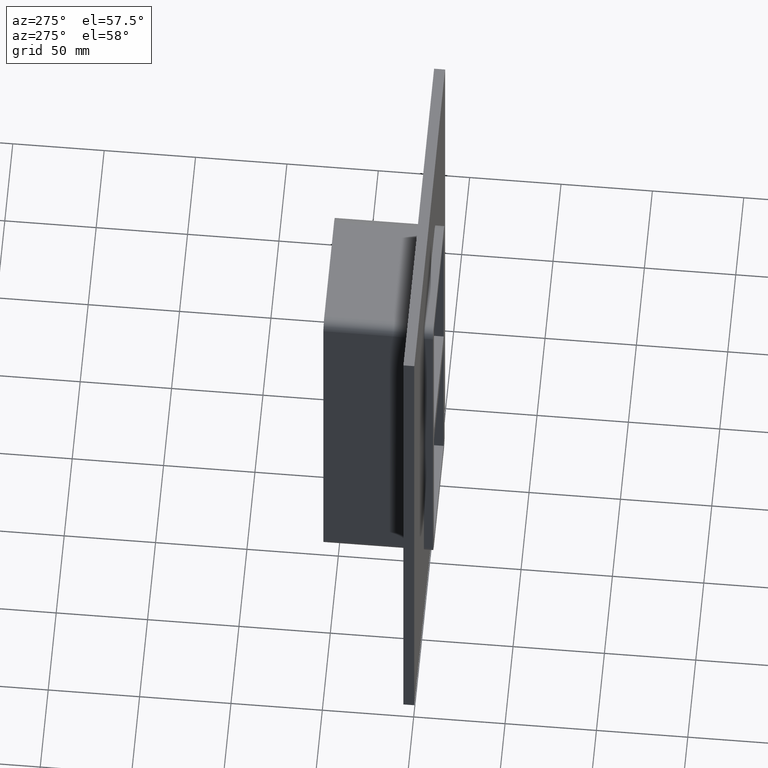
[diagram: clean part render]
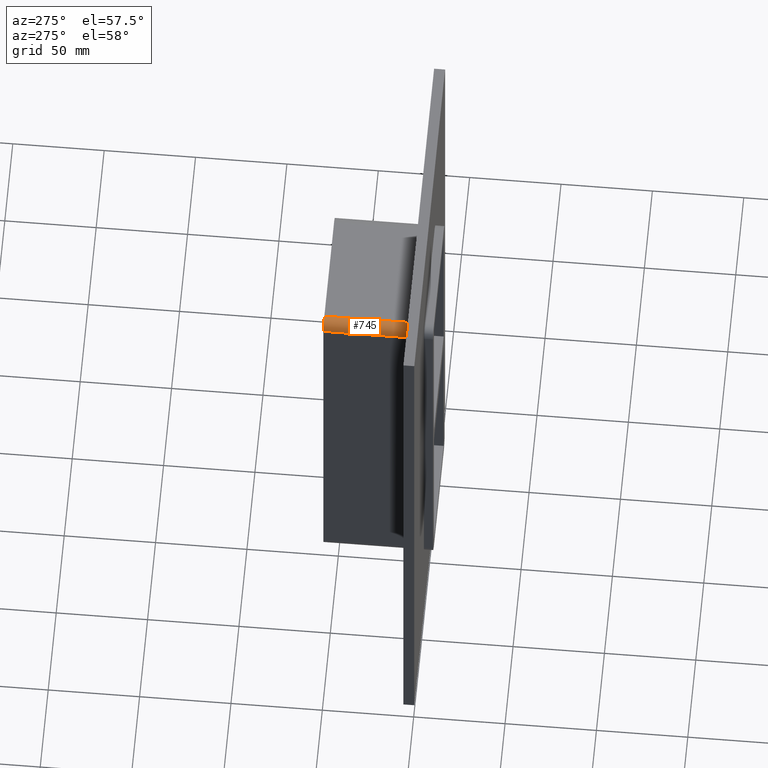
[diagram: same view with one face highlighted and labeled with its STEP entity id]
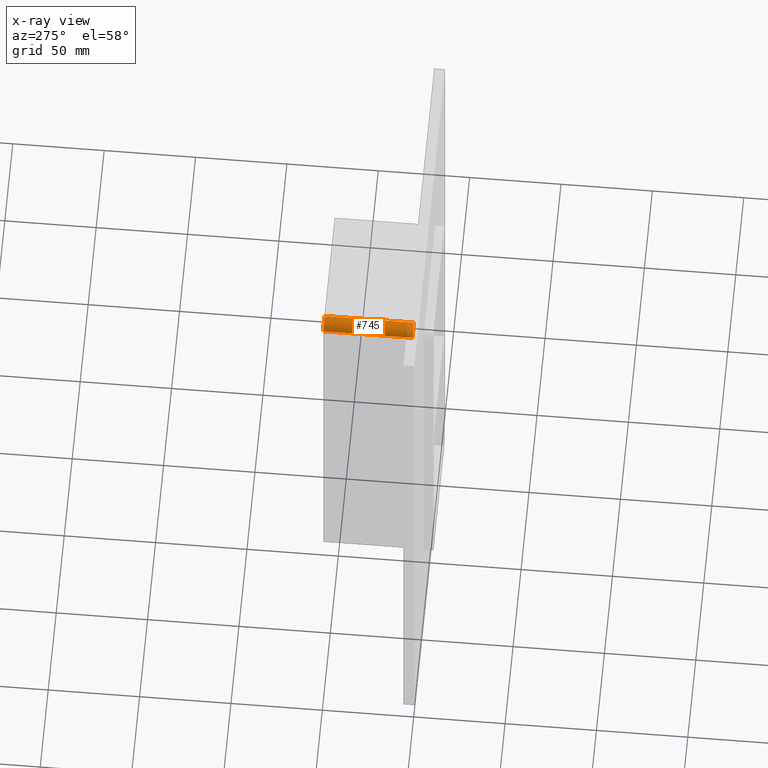
[diagram: x-ray of the same camera — body ghosted, the highlighted face saturated]
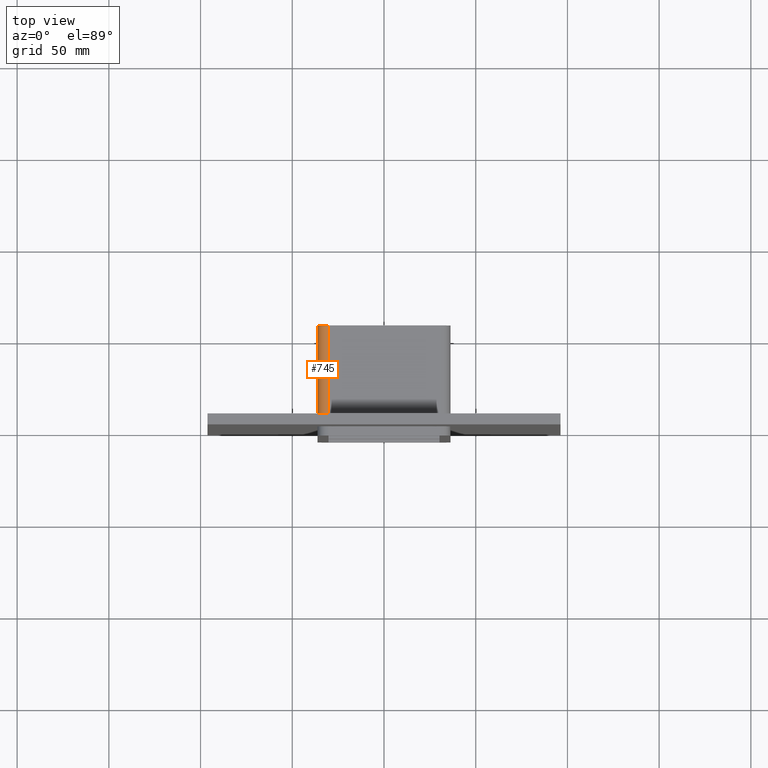
[diagram: same view with one face highlighted and labeled with its STEP entity id]
A machine part, auxiliary view. The second image highlights one B-rep face of the part: STEP entity #745.
The next image is the same camera in x-ray: the body ghosted, the highlighted face saturated — about 7% of this face is hidden behind the body in this view.
A second angle (top view) of the same face is appended — the face is thin or edge-on in the first view.
In plain terms, the highlighted cylindrical surface (edge-blend (fillet) strip) has radius 6 mm, axis along (0, 1, 0).
Its self-contained STEP definition (entity closure, byte-faithful):
#291=CARTESIAN_POINT('',(-30.249999999999986,6.000000000000001,112.00000000000003));
#292=VERTEX_POINT('',#291);
#299=CARTESIAN_POINT('',(-36.25,6.000000000000001,106.00000000000001));
#300=VERTEX_POINT('',#299);
#301=CARTESIAN_POINT('',(-30.249999999999986,6.000000000000001,106.00000000000001));
#302=DIRECTION('',(0.0,1.0,0.0));
#303=DIRECTION('',(-1.0,0.0,0.0));
#304=AXIS2_PLACEMENT_3D('',#301,#302,#303);
#305=CIRCLE('',#304,6.000000000000014);
#306=EDGE_CURVE('',#300,#292,#305,.T.);
#654=CARTESIAN_POINT('',(-36.25,55.0,106.00000000000001));
#655=VERTEX_POINT('',#654);
#656=CARTESIAN_POINT('',(-36.25,6.000000000000001,106.00000000000001));
#657=DIRECTION('',(0.0,1.0,0.0));
#658=VECTOR('',#657,49.0);
#659=LINE('',#656,#658);
#660=EDGE_CURVE('',#300,#655,#659,.T.);
#721=CARTESIAN_POINT('',(-30.249999999999986,0.0,106.00000000000001));
#722=DIRECTION('',(0.0,1.0,0.0));
#723=DIRECTION('',(-1.0,0.0,0.0));
#724=AXIS2_PLACEMENT_3D('',#721,#722,#723);
#725=CYLINDRICAL_SURFACE('',#724,6.000000000000014);
#726=ORIENTED_EDGE('',*,*,#306,.T.);
#727=CARTESIAN_POINT('',(-30.249999999999986,55.0,112.00000000000003));
#728=VERTEX_POINT('',#727);
#729=CARTESIAN_POINT('',(-30.249999999999986,6.000000000000001,112.00000000000003));
#730=DIRECTION('',(0.0,1.0,0.0));
#731=VECTOR('',#730,49.0);
#732=LINE('',#729,#731);
#733=EDGE_CURVE('',#292,#728,#732,.T.);
#734=ORIENTED_EDGE('',*,*,#733,.T.);
#735=CARTESIAN_POINT('',(-30.249999999999986,55.0,106.00000000000001));
#736=DIRECTION('',(0.0,1.0,0.0));
#737=DIRECTION('',(-1.0,0.0,0.0));
#738=AXIS2_PLACEMENT_3D('',#735,#736,#737);
#739=CIRCLE('',#738,6.000000000000014);
#740=EDGE_CURVE('',#655,#728,#739,.T.);
#741=ORIENTED_EDGE('',*,*,#740,.F.);
#742=ORIENTED_EDGE('',*,*,#660,.F.);
#743=EDGE_LOOP('',(#726,#734,#741,#742));
#744=FACE_OUTER_BOUND('',#743,.T.);
#745=ADVANCED_FACE('',(#744),#725,.T.);